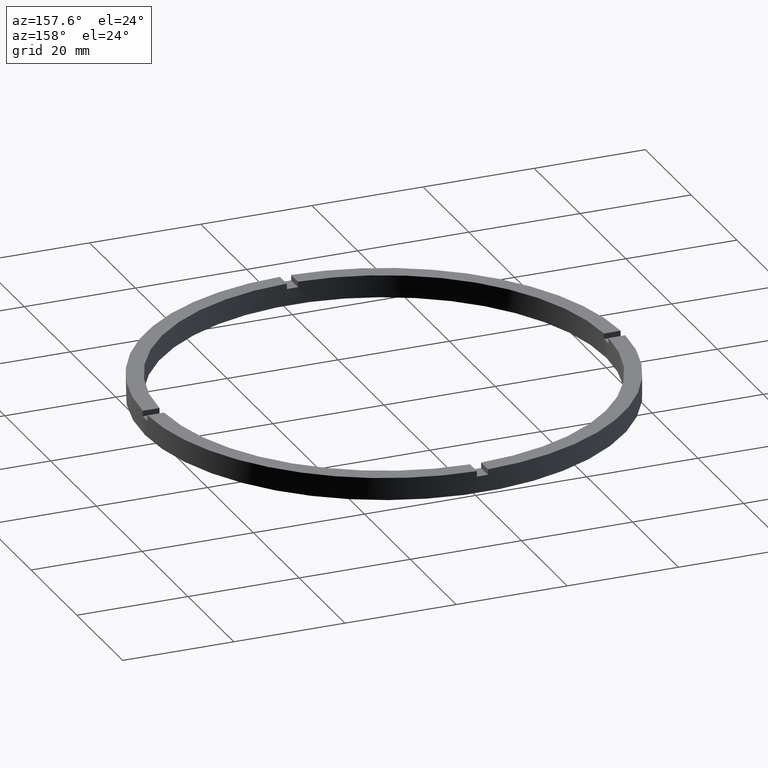
[diagram: clean part render]
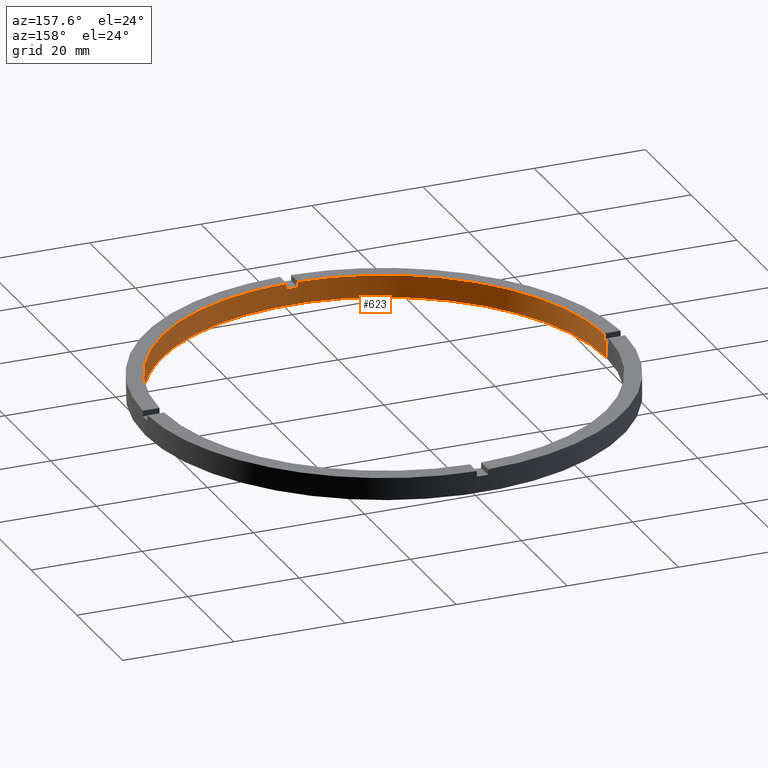
[diagram: same view with one face highlighted and labeled with its STEP entity id]
A machine part, auxiliary view. The second image highlights one B-rep face of the part: STEP entity #623.
In plain terms, the highlighted cylindrical surface (partial cylindrical patch) has radius 40 mm, axis along (-0, -0, -1).
Its self-contained STEP definition (entity closure, byte-faithful):
#2 = ORIENTED_EDGE ( 'NONE', *, *, #142, .T. ) ;
#4 = VERTEX_POINT ( 'NONE', #494 ) ;
#16 = CIRCLE ( 'NONE', #645, 40.00000000000000000 ) ;
#17 = AXIS2_PLACEMENT_3D ( 'NONE', #772, #464, #77 ) ;
#33 = FACE_OUTER_BOUND ( 'NONE', #554, .T. ) ;
#39 = CIRCLE ( 'NONE', #17, 40.00000000000000000 ) ;
#47 = DIRECTION ( 'NONE',  ( 0.000000000000000000, 0.000000000000000000, 1.000000000000000000 ) ) ;
#54 = CIRCLE ( 'NONE', #562, 40.00000000000000000 ) ;
#64 = AXIS2_PLACEMENT_3D ( 'NONE', #354, #164, #371 ) ;
#67 = VECTOR ( 'NONE', #216, 1000.000000000000000 ) ;
#68 = LINE ( 'NONE', #662, #67 ) ;
#69 = CARTESIAN_POINT ( 'NONE',  ( 0.000000000000000000, 0.000000000000000000, 0.000000000000000000 ) ) ;
#70 = DIRECTION ( 'NONE',  ( -0.000000000000000000, -0.000000000000000000, -1.000000000000000000 ) ) ;
#77 = DIRECTION ( 'NONE',  ( 1.000000000000000000, 0.000000000000000000, 0.000000000000000000 ) ) ;
#81 = LINE ( 'NONE', #83, #332 ) ;
#82 = VECTOR ( 'NONE', #653, 1000.000000000000000 ) ;
#83 = CARTESIAN_POINT ( 'NONE',  ( -40.00000000000000000, 0.000000000000000000, 4.000000000000000000 ) ) ;
#84 = LINE ( 'NONE', #162, #82 ) ;
#85 = EDGE_CURVE ( 'NONE', #4, #773, #608, .T. ) ;
#98 = CARTESIAN_POINT ( 'NONE',  ( -39.98749804626441318, -1.000000000000028644, 3.000000000000000000 ) ) ;
#109 = VERTEX_POINT ( 'NONE', #381 ) ;
#112 = DIRECTION ( 'NONE',  ( 1.000000000000000000, 0.000000000000000000, 0.000000000000000000 ) ) ;
#114 = EDGE_CURVE ( 'NONE', #209, #516, #81, .T. ) ;
#117 = DIRECTION ( 'NONE',  ( 1.000000000000000000, 0.000000000000000000, 0.000000000000000000 ) ) ;
#120 = DIRECTION ( 'NONE',  ( 0.000000000000000000, 0.000000000000000000, 1.000000000000000000 ) ) ;
#121 = CARTESIAN_POINT ( 'NONE',  ( 0.000000000000000000, 0.000000000000000000, 4.000000000000000000 ) ) ;
#123 = DIRECTION ( 'NONE',  ( -0.000000000000000000, -0.000000000000000000, -1.000000000000000000 ) ) ;
#124 = AXIS2_PLACEMENT_3D ( 'NONE', #69, #120, #117 ) ;
#131 = EDGE_CURVE ( 'NONE', #4, #722, #84, .T. ) ;
#133 = EDGE_CURVE ( 'NONE', #109, #749, #606, .T. ) ;
#136 = EDGE_CURVE ( 'NONE', #630, #538, #54, .T. ) ;
#142 = EDGE_CURVE ( 'NONE', #538, #178, #558, .T. ) ;
#162 = CARTESIAN_POINT ( 'NONE',  ( -39.98749804626441318, -1.000000000000028644, 4.000000000000000000 ) ) ;
#164 = DIRECTION ( 'NONE',  ( -0.000000000000000000, 0.000000000000000000, 1.000000000000000000 ) ) ;
#177 = CARTESIAN_POINT ( 'NONE',  ( -1.000000000000158984, -39.98749804626440607, 4.000000000000000000 ) ) ;
#178 = VERTEX_POINT ( 'NONE', #184 ) ;
#184 = CARTESIAN_POINT ( 'NONE',  ( 40.00000000000000000, 4.898587196589413026E-15, 0.000000000000000000 ) ) ;
#186 = CARTESIAN_POINT ( 'NONE',  ( -40.00000000000000000, 0.000000000000000000, 0.000000000000000000 ) ) ;
#203 = ORIENTED_EDGE ( 'NONE', *, *, #713, .T. ) ;
#206 = EDGE_CURVE ( 'NONE', #209, #722, #16, .T. ) ;
#208 = ORIENTED_EDGE ( 'NONE', *, *, #133, .F. ) ;
#209 = VERTEX_POINT ( 'NONE', #281 ) ;
#216 = DIRECTION ( 'NONE',  ( 0.000000000000000000, 0.000000000000000000, 1.000000000000000000 ) ) ;
#225 = DIRECTION ( 'NONE',  ( 0.000000000000000000, 0.000000000000000000, 1.000000000000000000 ) ) ;
#230 = ORIENTED_EDGE ( 'NONE', *, *, #595, .F. ) ;
#233 = CIRCLE ( 'NONE', #64, 40.00000000000000000 ) ;
#234 = ORIENTED_EDGE ( 'NONE', *, *, #308, .F. ) ;
#256 = ORIENTED_EDGE ( 'NONE', *, *, #85, .T. ) ;
#257 = AXIS2_PLACEMENT_3D ( 'NONE', #649, #47, #112 ) ;
#259 = ORIENTED_EDGE ( 'NONE', *, *, #136, .T. ) ;
#270 = VERTEX_POINT ( 'NONE', #370 ) ;
#279 = CYLINDRICAL_SURFACE ( 'NONE', #461, 40.00000000000000000 ) ;
#281 = CARTESIAN_POINT ( 'NONE',  ( -40.00000000000000000, 0.000000000000000000, 3.000000000000000000 ) ) ;
#292 = CARTESIAN_POINT ( 'NONE',  ( 0.000000000000000000, 0.000000000000000000, 3.000000000000000000 ) ) ;
#305 = CARTESIAN_POINT ( 'NONE',  ( 39.98749804626440607, -1.000000000000156763, 3.000000000000000000 ) ) ;
#308 = EDGE_CURVE ( 'NONE', #630, #590, #68, .T. ) ;
#316 = CIRCLE ( 'NONE', #124, 40.00000000000000000 ) ;
#321 = ORIENTED_EDGE ( 'NONE', *, *, #131, .F. ) ;
#332 = VECTOR ( 'NONE', #123, 1000.000000000000000 ) ;
#335 = VECTOR ( 'NONE', #545, 1000.000000000000000 ) ;
#338 = CARTESIAN_POINT ( 'NONE',  ( 0.000000000000000000, 0.000000000000000000, 3.000000000000000000 ) ) ;
#354 = CARTESIAN_POINT ( 'NONE',  ( 0.000000000000000000, 0.000000000000000000, 3.000000000000000000 ) ) ;
#370 = CARTESIAN_POINT ( 'NONE',  ( -1.000000000000158984, -39.98749804626440607, 3.000000000000000000 ) ) ;
#371 = DIRECTION ( 'NONE',  ( 1.000000000000000000, 0.000000000000000000, 0.000000000000000000 ) ) ;
#381 = CARTESIAN_POINT ( 'NONE',  ( 0.9999999999998411271, -39.98749804626441318, 4.000000000000000000 ) ) ;
#410 = CARTESIAN_POINT ( 'NONE',  ( 40.00000000000000000, 4.898587196589413026E-15, 3.000000000000000000 ) ) ;
#415 = CARTESIAN_POINT ( 'NONE',  ( -1.000000000000158984, -39.98749804626440607, 4.000000000000000000 ) ) ;
#425 = EDGE_CURVE ( 'NONE', #516, #178, #316, .T. ) ;
#436 = CARTESIAN_POINT ( 'NONE',  ( 0.9999999999998411271, -39.98749804626441318, 3.000000000000000000 ) ) ;
#442 = DIRECTION ( 'NONE',  ( 1.000000000000000000, 0.000000000000000000, 0.000000000000000000 ) ) ;
#461 = AXIS2_PLACEMENT_3D ( 'NONE', #121, #70, #659 ) ;
#464 = DIRECTION ( 'NONE',  ( 0.000000000000000000, 0.000000000000000000, 1.000000000000000000 ) ) ;
#474 = ORIENTED_EDGE ( 'NONE', *, *, #114, .F. ) ;
#475 = ORIENTED_EDGE ( 'NONE', *, *, #617, .T. ) ;
#476 = ORIENTED_EDGE ( 'NONE', *, *, #425, .F. ) ;
#494 = CARTESIAN_POINT ( 'NONE',  ( -39.98749804626441318, -1.000000000000028644, 4.000000000000000000 ) ) ;
#516 = VERTEX_POINT ( 'NONE', #186 ) ;
#538 = VERTEX_POINT ( 'NONE', #410 ) ;
#545 = DIRECTION ( 'NONE',  ( -0.000000000000000000, -0.000000000000000000, -1.000000000000000000 ) ) ;
#554 = EDGE_LOOP ( 'NONE', ( #259, #2, #476, #474, #776, #321, #256, #230, #203, #208, #475, #234 ) ) ;
#558 = LINE ( 'NONE', #753, #563 ) ;
#562 = AXIS2_PLACEMENT_3D ( 'NONE', #292, #225, #689 ) ;
#563 = VECTOR ( 'NONE', #764, 1000.000000000000000 ) ;
#570 = VECTOR ( 'NONE', #620, 1000.000000000000000 ) ;
#590 = VERTEX_POINT ( 'NONE', #612 ) ;
#595 = EDGE_CURVE ( 'NONE', #270, #773, #696, .T. ) ;
#603 = CARTESIAN_POINT ( 'NONE',  ( 0.9999999999998411271, -39.98749804626441318, 4.000000000000000000 ) ) ;
#606 = LINE ( 'NONE', #603, #335 ) ;
#608 = CIRCLE ( 'NONE', #257, 40.00000000000000000 ) ;
#612 = CARTESIAN_POINT ( 'NONE',  ( 39.98749804626440607, -1.000000000000156763, 4.000000000000000000 ) ) ;
#617 = EDGE_CURVE ( 'NONE', #109, #590, #39, .T. ) ;
#620 = DIRECTION ( 'NONE',  ( 0.000000000000000000, 0.000000000000000000, 1.000000000000000000 ) ) ;
#623 = ADVANCED_FACE ( 'NONE', ( #33 ), #279, .F. ) ;
#630 = VERTEX_POINT ( 'NONE', #305 ) ;
#645 = AXIS2_PLACEMENT_3D ( 'NONE', #338, #752, #442 ) ;
#649 = CARTESIAN_POINT ( 'NONE',  ( 0.000000000000000000, 0.000000000000000000, 4.000000000000000000 ) ) ;
#653 = DIRECTION ( 'NONE',  ( -0.000000000000000000, -0.000000000000000000, -1.000000000000000000 ) ) ;
#659 = DIRECTION ( 'NONE',  ( -1.000000000000000000, 0.000000000000000000, 0.000000000000000000 ) ) ;
#662 = CARTESIAN_POINT ( 'NONE',  ( 39.98749804626440607, -1.000000000000156763, 4.000000000000000000 ) ) ;
#689 = DIRECTION ( 'NONE',  ( 1.000000000000000000, 0.000000000000000000, 0.000000000000000000 ) ) ;
#696 = LINE ( 'NONE', #415, #570 ) ;
#713 = EDGE_CURVE ( 'NONE', #270, #749, #233, .T. ) ;
#722 = VERTEX_POINT ( 'NONE', #98 ) ;
#749 = VERTEX_POINT ( 'NONE', #436 ) ;
#752 = DIRECTION ( 'NONE',  ( 0.000000000000000000, 0.000000000000000000, 1.000000000000000000 ) ) ;
#753 = CARTESIAN_POINT ( 'NONE',  ( 40.00000000000000000, 4.898587196589413026E-15, 4.000000000000000000 ) ) ;
#764 = DIRECTION ( 'NONE',  ( -0.000000000000000000, -0.000000000000000000, -1.000000000000000000 ) ) ;
#772 = CARTESIAN_POINT ( 'NONE',  ( 0.000000000000000000, 0.000000000000000000, 4.000000000000000000 ) ) ;
#773 = VERTEX_POINT ( 'NONE', #177 ) ;
#776 = ORIENTED_EDGE ( 'NONE', *, *, #206, .T. ) ;